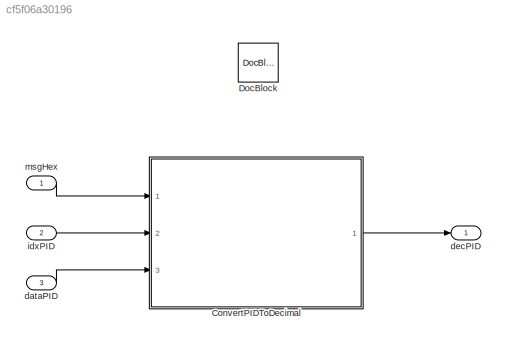
MODEL slx_cf5f06a30196
KIND model
CONFIG AbsTol = auto
CONFIG EnableMultiTasking = off
CONFIG FixedStep = 0.2
CONFIG MaxStep = auto
CONFIG MinStep = auto
CONFIG RelTol = 1e-3
CONFIG SampleTimeConstraint = Unconstrained
CONFIG SolverName = FixedStepAuto
CONFIG StartTime = 0.0
CONFIG StopTime = 10.0
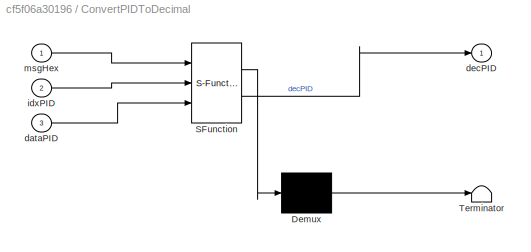
BLOCK [SubSystem] ConvertPIDToDecimal
  ErrorFcn = Stateflow.Translate.translate
  PermitHierarchicalResolution = ExplicitOnly
  Ports = [3, 1]
  RequestExecContextInheritance = off
  SFBlockType = MATLAB Function
  TreatAsAtomicUnit = on
BLOCK [Demux] ConvertPIDToDecimal/ Demux 
  Outputs = 1
  Ports = [1, 1]
BLOCK [S-Function] ConvertPIDToDecimal/ SFunction 
  EnableBusSupport = on
  FunctionName = sf_sfun
  PortCounts = [3 2]
  Ports = [3, 2]
  SFcnIsStateOwnerBlock = off
  SFunctionDeploymentMode = off
  Tag = Stateflow S-Function 2
BLOCK [Terminator] ConvertPIDToDecimal/ Terminator 
BLOCK [Inport] ConvertPIDToDecimal/dataPID
  Port = 3
BLOCK [Outport] ConvertPIDToDecimal/decPID
BLOCK [Inport] ConvertPIDToDecimal/idxPID
  Port = 2
BLOCK [Inport] ConvertPIDToDecimal/msgHex
BLOCK [Reference] DocBlock  REF=simulink/Model-Wide
Utilities/DocBlock
  AttributesFormatString = %<ECoderFlag>
  Ports = []
  SourceBlock = simulink/Model-Wide\nUtilities/DocBlock
  SourceProductBaseCode = SL
  SourceType = DocBlock
  UserDataPersistent = on
BLOCK [Inport] dataPID
  OutDataTypeStr = uint8
  Port = 3
  PortDimensions = 1
  Unit = 1
  VarSizeSig = No
BLOCK [Outport] decPID
  OutDataTypeStr = double
  PortDimensions = 1
  Unit = rpm
  VarSizeSig = No
BLOCK [Inport] idxPID
  OutDataTypeStr = uint8
  Port = 2
  PortDimensions = 1
  Unit = 1
  VarSizeSig = No
BLOCK [Inport] msgHex
  OutDataTypeStr = double
  PortDimensions = 1
  Unit = rpm
  VarSizeSig = No
LINE ConvertPIDToDecimal:1 -> decPID:1
LINE dataPID:1 -> ConvertPIDToDecimal:3
LINE idxPID:1 -> ConvertPIDToDecimal:2
LINE msgHex:1 -> ConvertPIDToDecimal:1
CHART ConvertPIDToDecimal states=1 transitions=1
  STATE_LABEL 'eML_blk_kernel()'
  STATE_LABEL 'SCRIPT:\nfunction decPID = ConvertPIDToDecimal(msgHex, idxPID, dataPID)\n%#codegen\n\ndecPID = msgHex;\n'
CHART  states=0 transitions=0
